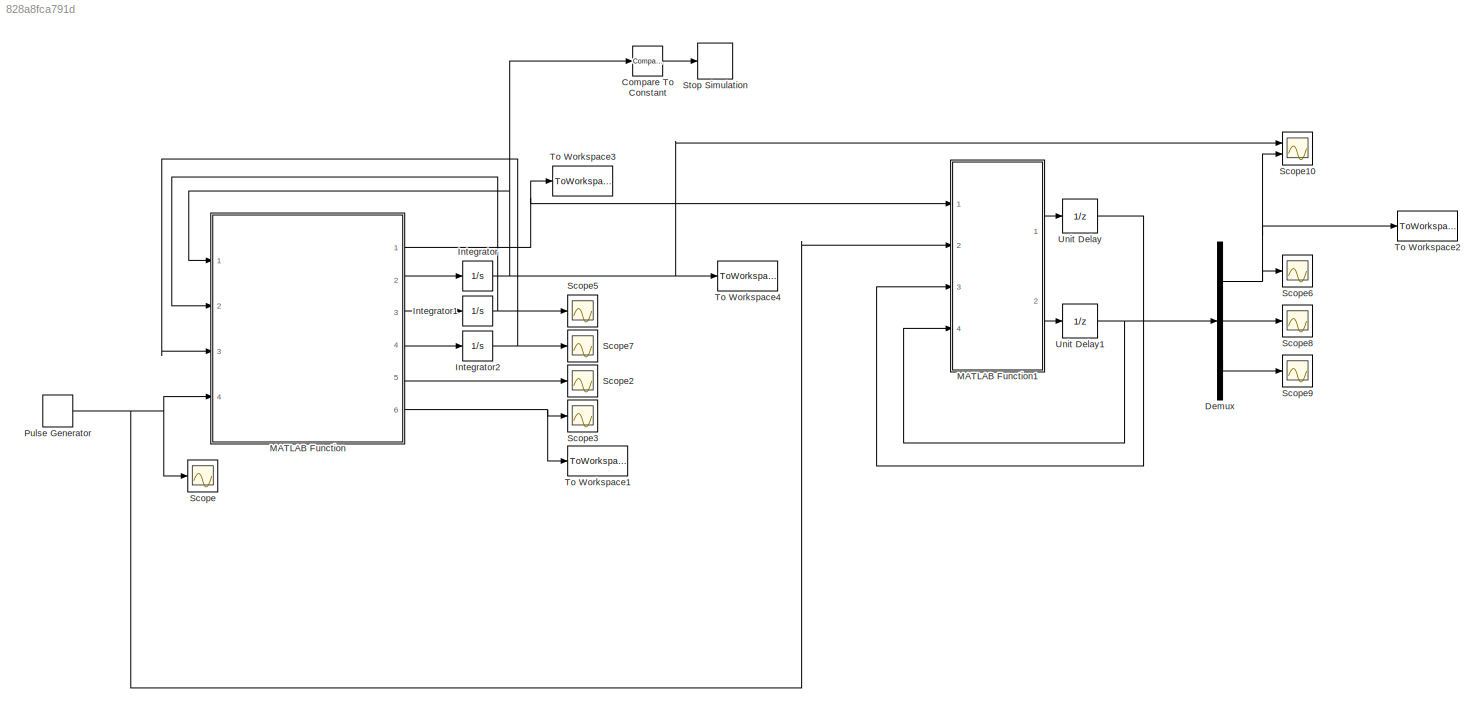
MODEL slx_828a8fca791d
KIND model
CONFIG AbsTol = auto
CONFIG EnableMultiTasking = off
CONFIG FixedStep = auto
CONFIG MaxStep = auto
CONFIG MinStep = auto
CONFIG RelTol = 1e-3
CONFIG SampleTimeConstraint = Unconstrained
CONFIG Solver = VariableStepAuto
CONFIG SolverName = VariableStepAuto
CONFIG StartTime = 0.0
CONFIG StopTime = 50000
BLOCK [Reference] Compare To Constant  REF=simulink/Logic and Bit
Operations/Compare
To Constant
  Ports = [1, 1]
  SourceBlock = simulink/Logic and Bit\nOperations/Compare\nTo Constant
  SourceProductBaseCode = SL
  SourceProductName = Simulink
  SourceType = Compare To Constant
BLOCK [Demux] Demux
  DisplayOption = bar
  Outputs = 3
  Ports = [1, 3]
BLOCK [Integrator] Integrator
  InitialCondition = 1
  Ports = [1, 1]
BLOCK [Integrator] Integrator1
  Ports = [1, 1]
BLOCK [Integrator] Integrator2
  Ports = [1, 1]
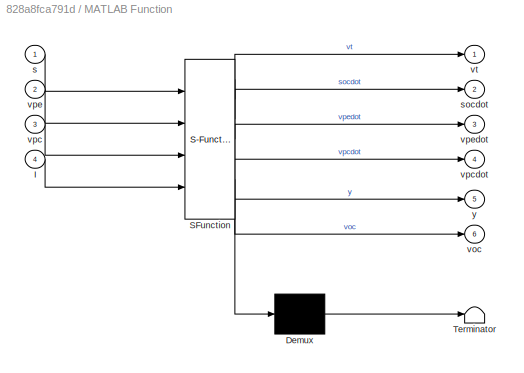
BLOCK [SubSystem] MATLAB Function
  ErrorFcn = Stateflow.Translate.translate
  PermitHierarchicalResolution = ExplicitOnly
  Ports = [4, 6]
  RequestExecContextInheritance = off
  SFBlockType = MATLAB Function
  TreatAsAtomicUnit = on
BLOCK [Demux] MATLAB Function/ Demux 
  Outputs = 1
  Ports = [1, 1]
BLOCK [S-Function] MATLAB Function/ SFunction 
  EnableBusSupport = on
  FunctionName = sf_sfun
  PortCounts = [4 7]
  Ports = [4, 7]
  SFcnIsStateOwnerBlock = off
  SFunctionDeploymentMode = off
  Tag = Stateflow S-Function UKFSIM 2
BLOCK [Terminator] MATLAB Function/ Terminator 
BLOCK [Inport] MATLAB Function/I
  IconDisplay = Port number
  Port = 4
BLOCK [Inport] MATLAB Function/s
  IconDisplay = Port number
BLOCK [Outport] MATLAB Function/socdot
  IconDisplay = Port number
  Port = 2
BLOCK [Outport] MATLAB Function/voc
  IconDisplay = Port number
  Port = 6
BLOCK [Inport] MATLAB Function/vpc
  IconDisplay = Port number
  Port = 3
BLOCK [Outport] MATLAB Function/vpcdot
  IconDisplay = Port number
  Port = 4
BLOCK [Inport] MATLAB Function/vpe
  IconDisplay = Port number
  Port = 2
BLOCK [Outport] MATLAB Function/vpedot
  IconDisplay = Port number
  Port = 3
BLOCK [Outport] MATLAB Function/vt
  IconDisplay = Port number
BLOCK [Outport] MATLAB Function/y
  IconDisplay = Port number
  Port = 5
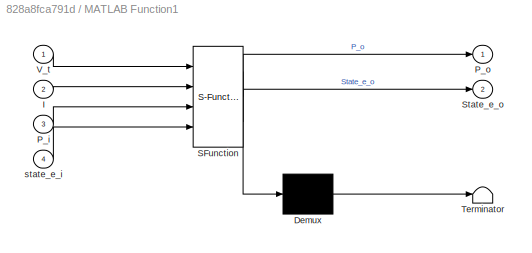
BLOCK [SubSystem] MATLAB Function1
  ErrorFcn = Stateflow.Translate.translate
  PermitHierarchicalResolution = ExplicitOnly
  Ports = [4, 2]
  RequestExecContextInheritance = off
  SFBlockType = MATLAB Function
  TreatAsAtomicUnit = on
BLOCK [Demux] MATLAB Function1/ Demux 
  Outputs = 1
  Ports = [1, 1]
BLOCK [S-Function] MATLAB Function1/ SFunction 
  EnableBusSupport = on
  FunctionName = sf_sfun
  PortCounts = [4 3]
  Ports = [4, 3]
  SFcnIsStateOwnerBlock = off
  SFunctionDeploymentMode = off
  Tag = Stateflow S-Function UKFSIM 1
BLOCK [Terminator] MATLAB Function1/ Terminator 
BLOCK [Inport] MATLAB Function1/I
  IconDisplay = Port number
  Port = 2
BLOCK [Inport] MATLAB Function1/P_i
  IconDisplay = Port number
  Port = 3
BLOCK [Outport] MATLAB Function1/P_o
  IconDisplay = Port number
BLOCK [Outport] MATLAB Function1/State_e_o
  IconDisplay = Port number
  Port = 2
BLOCK [Inport] MATLAB Function1/V_t
  IconDisplay = Port number
BLOCK [Inport] MATLAB Function1/state_e_i
  IconDisplay = Port number
  Port = 4
BLOCK [DiscretePulseGenerator] Pulse Generator
  Amplitude = 5
  Period = 5000
  Ports = [0, 1]
  PulseType = Time based
  PulseWidth = 10
BLOCK [Scope] Scope
  Floating = off
  NumInputPorts = 1
  Ports = [1]
  ScopeSpecificationString = Simulink.scopes.TimeScopeBlockCfg('CurrentConfiguration', extmgr.ConfigurationSet(extmgr.Configuration('Core','General UI',true),extmgr.Configuration('Core','Source UI',true),extmgr.Configuration('Sources','WiredSimulink',true,'DataLoggingVariableName','ScopeData1'),extmgr.Configuration('Visuals','Time Domain',true,'SerializedDisplays',{struct('MinYLimReal','-0.625','MaxYLimReal','5.625','YLabelRe...<+1391ch>
BLOCK [Scope] Scope10
  Floating = off
  NumInputPorts = 2
  Ports = [2]
  ScopeSpecificationString = Simulink.scopes.TimeScopeBlockCfg('CurrentConfiguration', extmgr.ConfigurationSet(extmgr.Configuration('Core','General UI',true),extmgr.Configuration('Core','Source UI',true),extmgr.Configuration('Sources','WiredSimulink',true,'DataLoggingVariableName','ScopeData1'),extmgr.Configuration('Visuals','Time Domain',true,'SerializedDisplays',{struct('MinYLimReal','0.0942','MaxYLimReal','1.15218','YLabel...<+1404ch>
BLOCK [Scope] Scope2
  Floating = off
  NumInputPorts = 1
  Ports = [1]
  ScopeSpecificationString = Simulink.scopes.TimeScopeBlockCfg('CurrentConfiguration', extmgr.ConfigurationSet(extmgr.Configuration('Core','General UI',true),extmgr.Configuration('Core','Source UI',true),extmgr.Configuration('Sources','WiredSimulink',true,'DataLoggingVariableName','ScopeData3'),extmgr.Configuration('Visuals','Time Domain',true,'SerializedDisplays',{struct('MinYLimReal','3.13994','MaxYLimReal','4.24756','YLabe...<+1405ch>
BLOCK [Scope] Scope3
  Floating = off
  NumInputPorts = 1
  Ports = [1]
  ScopeSpecificationString = Simulink.scopes.TimeScopeBlockCfg('CurrentConfiguration', extmgr.ConfigurationSet(extmgr.Configuration('Core','General UI',true),extmgr.Configuration('Core','Source UI',true),extmgr.Configuration('Sources','WiredSimulink',true,'DataLoggingVariableName','ScopeData6'),extmgr.Configuration('Visuals','Time Domain',true,'SerializedDisplays',{struct('MinYLimReal','3.53786','MaxYLimReal','4.23924','YLabe...<+1407ch>
BLOCK [Scope] Scope5
  Floating = off
  NumInputPorts = 1
  Ports = [1]
  ScopeSpecificationString = Simulink.scopes.TimeScopeBlockCfg('CurrentConfiguration', extmgr.ConfigurationSet(extmgr.Configuration('Core','General UI',true),extmgr.Configuration('Core','Source UI',true),extmgr.Configuration('Sources','WiredSimulink',true,'DataLoggingVariableName','ScopeData5'),extmgr.Configuration('Visuals','Time Domain',true,'SerializedDisplays',{struct('MinYLimReal','-0.0031','MaxYLimReal','0.0279','YLabel...<+1395ch>
BLOCK [Scope] Scope6
  Floating = off
  NumInputPorts = 1
  Ports = [1]
  ScopeSpecificationString = Simulink.scopes.TimeScopeBlockCfg('CurrentConfiguration', extmgr.ConfigurationSet(extmgr.Configuration('Core','General UI',true),extmgr.Configuration('Core','Source UI',true),extmgr.Configuration('Sources','WiredSimulink',true,'DataLoggingVariableName','ScopeData2'),extmgr.Configuration('Visuals','Time Domain',true,'SerializedDisplays',{struct('MinYLimReal','0.99633','MaxYLimReal','1.03283','YLabe...<+1397ch>
BLOCK [Scope] Scope7
  Floating = off
  NumInputPorts = 1
  Ports = [1]
  ScopeSpecificationString = Simulink.scopes.TimeScopeBlockCfg('CurrentConfiguration', extmgr.ConfigurationSet(extmgr.Configuration('Core','General UI',true),extmgr.Configuration('Core','Source UI',true),extmgr.Configuration('Sources','WiredSimulink',true,'DataLoggingVariableName','ScopeData7'),extmgr.Configuration('Visuals','Time Domain',true,'SerializedDisplays',{struct('MinYLimReal','-0.00178','MaxYLimReal','0.01605','YLab...<+1401ch>
BLOCK [Scope] Scope8
  Floating = off
  NumInputPorts = 1
  Ports = [1]
  ScopeSpecificationString = Simulink.scopes.TimeScopeBlockCfg('CurrentConfiguration', extmgr.ConfigurationSet(extmgr.Configuration('Core','General UI',true),extmgr.Configuration('Core','Source UI',true),extmgr.Configuration('Sources','WiredSimulink',true,'DataLoggingVariableName','ScopeData1'),extmgr.Configuration('Visuals','Time Domain',true,'SerializedDisplays',{struct('MinYLimReal','-0.23987','MaxYLimReal','0.24832','YLab...<+1397ch>
BLOCK [Scope] Scope9
  Floating = off
  NumInputPorts = 1
  Ports = [1]
  ScopeSpecificationString = Simulink.scopes.TimeScopeBlockCfg('CurrentConfiguration', extmgr.ConfigurationSet(extmgr.Configuration('Core','General UI',true),extmgr.Configuration('Core','Source UI',true),extmgr.Configuration('Sources','WiredSimulink',true,'DataLoggingVariableName','ScopeData3'),extmgr.Configuration('Visuals','Time Domain',true,'SerializedDisplays',{struct('MinYLimReal','-0.35455','MaxYLimReal','0.08558','YLab...<+1366ch>
BLOCK [Stop] Stop Simulation
BLOCK [ToWorkspace] To Workspace1
  FixptAsFi = on
  MaxDataPoints = inf
  Ports = [1]
  SampleTime = -1
  SaveFormat = Timeseries
  VariableName = Voc
BLOCK [ToWorkspace] To Workspace2
  FixptAsFi = on
  MaxDataPoints = inf
  Ports = [1]
  SampleTime = -1
  SaveFormat = Timeseries
  VariableName = SOC_EST
BLOCK [ToWorkspace] To Workspace3
  FixptAsFi = on
  MaxDataPoints = inf
  Ports = [1]
  SampleTime = -1
  SaveFormat = Timeseries
  VariableName = Vt
BLOCK [ToWorkspace] To Workspace4
  FixptAsFi = on
  MaxDataPoints = inf
  Ports = [1]
  SampleTime = -1
  SaveFormat = Timeseries
  VariableName = SOC_Model
BLOCK [UnitDelay] Unit Delay
  HasFrameUpgradeWarning = on
  InitialCondition = diag([A1 A2 A3])
  SampleTime = 0.01
BLOCK [UnitDelay] Unit Delay1
  HasFrameUpgradeWarning = on
  InitialCondition = [0.2,0,0]
  SampleTime = 0.01
LINE Compare To Constant:1 -> Stop Simulation:1
NET Demux:1 -> Scope10:2, Scope6:1, To Workspace2:1
LINE Demux:2 -> Scope8:1
LINE Demux:3 -> Scope9:1
NET Integrator1:1 -> MATLAB Function:2, Scope5:1
NET Integrator2:1 -> MATLAB Function:3, Scope7:1
NET Integrator:1 -> Compare To Constant:1, MATLAB Function:1, Scope10:1, To Workspace4:1
LINE MATLAB Function1:1 -> Unit Delay:1
LINE MATLAB Function1:2 -> Unit Delay1:1
NET MATLAB Function:1 -> MATLAB Function1:1, To Workspace3:1
LINE MATLAB Function:2 -> Integrator:1
LINE MATLAB Function:3 -> Integrator1:1
LINE MATLAB Function:4 -> Integrator2:1
LINE MATLAB Function:5 -> Scope2:1
NET MATLAB Function:6 -> Scope3:1, To Workspace1:1
NET Pulse Generator:1 -> MATLAB Function1:2, MATLAB Function:4, Scope:1
NET Unit Delay1:1 -> Demux:1, MATLAB Function1:4
LINE Unit Delay:1 -> MATLAB Function1:3
note: NET lines group one-source signal fan-out (src -> all destinations, sorted); 1:1 wires keep LINE
CHART MATLAB Function1 states=1 transitions=1
  STATE_LABEL 'eML_blk_kernel()'
  STATE_LABEL 'SCRIPT:\nfunction [P_o,State_e_o] = fcn(V_t,I,P_i,state_e_i)\n%%\n%{\nsigma_xx(:,k)=[\n    sigma_x(1,k)=soc(k-1);\n    sigma_x(2,k)=Vpe(k-1);\n    sigma_x(3,k)=Vpc(k-1);\n]\n\nsigma_xxx(:,i)-->\nsigma_xxx(1,k)= soc(k-1);\nsigma_xxx(2,k)= Vpe(k-1);\nsigma_xxx(3,k)= Vpc(k-1);\nsigma_z(1,k)=vt;\n%}\n%% Battery Parameters\nR_pe=4.96e-3;\nR_pc=2.86e-3;\nC_pe=4.93e3;\nC_pc=14.33e3;\nR_in=102.5e-3;\nC_n=5*3600;\n%% \nn=3;\nn_m=2...<+1824ch>'
CHART MATLAB Function states=1 transitions=1
  STATE_LABEL 'eML_blk_kernel()'
  STATE_LABEL 'SCRIPT:\nfunction [vt,socdot,vpedot,vpcdot,y,voc]  = fcn(s,vpe,vpc,I)\n%% Battery Parameters\nRpe=4.96e-3;\nRpc=2.86e-3;\nCpe=4.93e3;\nCpc=14.33e3;\nRin=102.5e-3;\nCn=5*3600;\nk=0.55;\n%%\na1 = 1/(Rpe*Cpe)+1/(Rpc*Cpc);\na2 = 1/(Rin*Cn);\na3 = 1/(Rpc*Cpc);\na4 = 1/(Rpe*Cpe);\nb1 = k/Cn + 1/Cpe + 1/Cpc + Rin/(Rpe*Cpe)+ Rin/(Rpc*Cpc);\nb2 = 1/Cpe;\nb3 = 1/Cpc;\n% uncer=0.2;\n%%\nvoc=k*s+3.625;\n% voc=3.608-1.209*s^4 + 3....<+491ch>'
